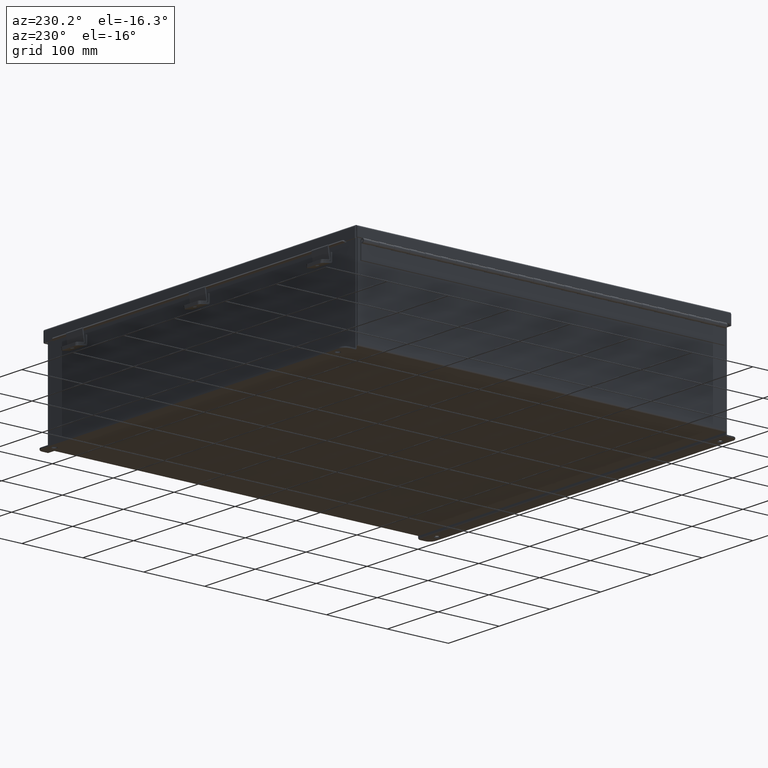
[diagram: clean part render]
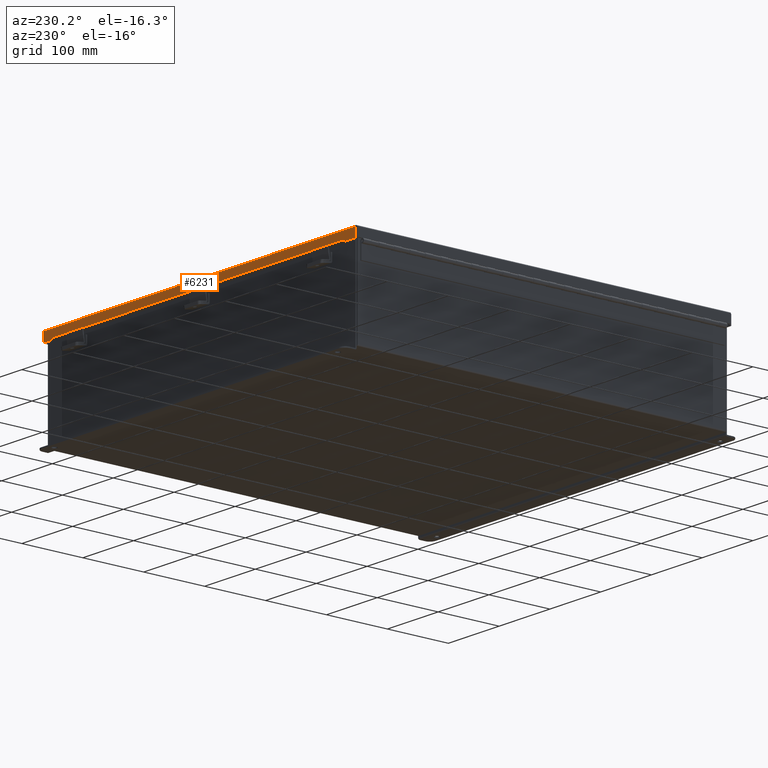
[diagram: same view with one face highlighted and labeled with its STEP entity id]
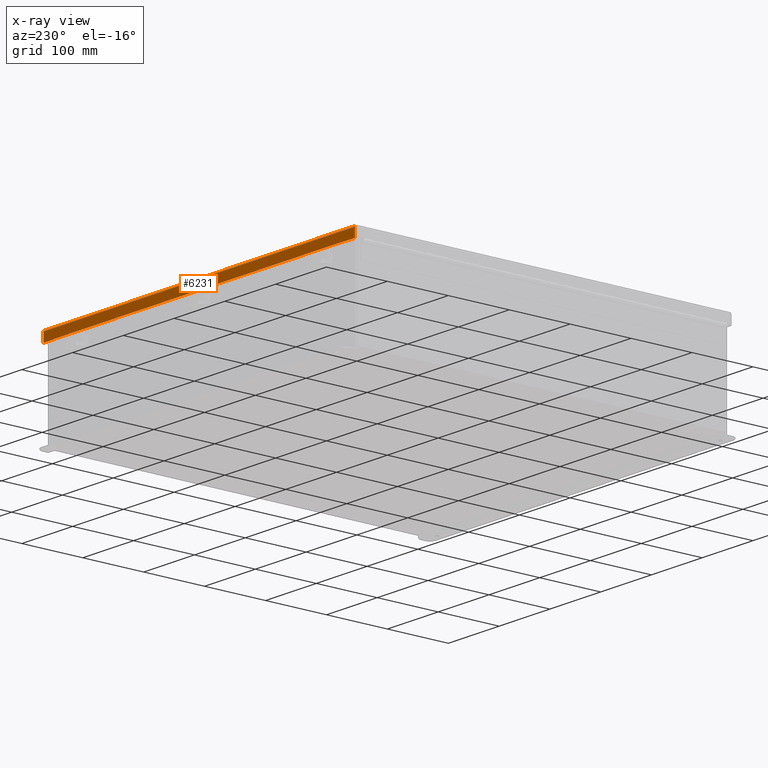
[diagram: x-ray of the same camera — body ghosted, the highlighted face saturated]
A machine part, auxiliary view. The second image highlights one B-rep face of the part: STEP entity #6231.
The next image is the same camera in x-ray: the body ghosted, the highlighted face saturated — about 0% of this face is hidden behind the body in this view.
In plain terms, the highlighted planar face has unit normal (-0, -1, -0).
Its self-contained STEP definition (entity closure, byte-faithful):
#749 = EDGE_CURVE ( 'NONE', #18148, #19298, #5746, .T. ) ;
#758 = PLANE ( 'NONE',  #11921 ) ;
#1365 = VERTEX_POINT ( 'NONE', #24680 ) ;
#1584 = CARTESIAN_POINT ( 'NONE',  ( 11.32447893218817300, 12.15625000000000200, 0.6123000000000005100 ) ) ;
#2405 = LINE ( 'NONE', #20569, #2613 ) ;
#2613 = VECTOR ( 'NONE', #16181, 39.37007874015748100 ) ;
#3145 = CARTESIAN_POINT ( 'NONE',  ( 11.32447893218816900, 12.15624999999999500, 0.5967115427318782100 ) ) ;
#3178 = DIRECTION ( 'NONE',  ( 0.0000000000000000000, 3.569293475308532400E-015, 1.000000000000000000 ) ) ;
#3265 = CARTESIAN_POINT ( 'NONE',  ( 0.0000000000000000000, 12.15624999999999800, -4.370956789862821100E-014 ) ) ;
#4363 = ORIENTED_EDGE ( 'NONE', *, *, #12279, .F. ) ;
#4789 = CARTESIAN_POINT ( 'NONE',  ( -12.07447893218816400, 12.15625000000000000, 0.6122999999999994000 ) ) ;
#4878 = ORIENTED_EDGE ( 'NONE', *, *, #749, .F. ) ;
#5016 = EDGE_CURVE ( 'NONE', #1365, #18262, #9262, .T. ) ;
#5138 = EDGE_CURVE ( 'NONE', #10554, #18148, #8335, .T. ) ;
#5178 = EDGE_CURVE ( 'NONE', #24583, #10554, #7836, .T. ) ;
#5375 = CARTESIAN_POINT ( 'NONE',  ( 11.32447893218817300, 12.15625000000000000, 0.6123000000000005100 ) ) ;
#5419 = VECTOR ( 'NONE', #12237, 39.37007874015748100 ) ;
#5599 = CARTESIAN_POINT ( 'NONE',  ( -12.07447893218816400, 12.15624999999999800, -4.370956789862821100E-014 ) ) ;
#5746 = LINE ( 'NONE', #12270, #5419 ) ;
#5814 = VERTEX_POINT ( 'NONE', #4789 ) ;
#5849 = EDGE_CURVE ( 'NONE', #5814, #19298, #2405, .T. ) ;
#6024 = EDGE_LOOP ( 'NONE', ( #18311, #24344, #4363, #13497, #14555, #11192, #4878, #22691 ) ) ;
#6231 = ADVANCED_FACE ( 'NONE', ( #22681 ), #758, .F. ) ;
#7812 = VECTOR ( 'NONE', #15337, 39.37007874015748100 ) ;
#7836 = LINE ( 'NONE', #1584, #7812 ) ;
#8142 = VECTOR ( 'NONE', #12881, 39.37007874015748100 ) ;
#8335 = LINE ( 'NONE', #3145, #8142 ) ;
#8422 = CARTESIAN_POINT ( 'NONE',  ( 12.07447893218817300, 12.15624999999999800, 0.01300000000000010700 ) ) ;
#8953 = CARTESIAN_POINT ( 'NONE',  ( 12.07447893218817300, 12.15624999999999800, 0.0000000000000000000 ) ) ;
#8982 = DIRECTION ( 'NONE',  ( -0.0000000000000000000, 3.569293475308532400E-015, 1.000000000000000000 ) ) ;
#9059 = VECTOR ( 'NONE', #22393, 39.37007874015748100 ) ;
#9120 = EDGE_CURVE ( 'NONE', #24583, #21087, #23861, .T. ) ;
#9262 = LINE ( 'NONE', #10788, #9059 ) ;
#10554 = VERTEX_POINT ( 'NONE', #12902 ) ;
#10788 = CARTESIAN_POINT ( 'NONE',  ( 12.15625000000003900, 12.15624999999999800, 0.01300000000000010700 ) ) ;
#11192 = ORIENTED_EDGE ( 'NONE', *, *, #5849, .T. ) ;
#11921 = AXIS2_PLACEMENT_3D ( 'NONE', #3265, #18257, #15664 ) ;
#12237 = DIRECTION ( 'NONE',  ( -9.813895308167668300E-013, 2.803970088047895600E-013, 1.000000000000000000 ) ) ;
#12270 = CARTESIAN_POINT ( 'NONE',  ( -11.32447893218815200, 12.15624999999999500, 0.5967115427318782100 ) ) ;
#12279 = EDGE_CURVE ( 'NONE', #18262, #21087, #20720, .T. ) ;
#12881 = DIRECTION ( 'NONE',  ( -1.000000000000000000, -3.191323508412551400E-030, -0.0000000000000000000 ) ) ;
#12902 = CARTESIAN_POINT ( 'NONE',  ( 11.32447893218817300, 12.15624999999999500, 0.5967115427318782100 ) ) ;
#13422 = CARTESIAN_POINT ( 'NONE',  ( 12.07447893218817300, 12.15625000000000000, 0.6123000000000005100 ) ) ;
#13497 = ORIENTED_EDGE ( 'NONE', *, *, #5016, .F. ) ;
#14555 = ORIENTED_EDGE ( 'NONE', *, *, #16966, .T. ) ;
#15337 = DIRECTION ( 'NONE',  ( 1.401985044024013700E-013, -4.205955132072028500E-013, -1.000000000000000000 ) ) ;
#15664 = DIRECTION ( 'NONE',  ( 0.0000000000000000000, -3.569293475308532400E-015, -1.000000000000000000 ) ) ;
#16181 = DIRECTION ( 'NONE',  ( 1.000000000000000000, 3.215610014906585900E-030, 2.809098193999883300E-018 ) ) ;
#16966 = EDGE_CURVE ( 'NONE', #1365, #5814, #19339, .T. ) ;
#17028 = CARTESIAN_POINT ( 'NONE',  ( -11.32447893218815200, 12.15625000000000000, 0.5967115427318782100 ) ) ;
#18148 = VERTEX_POINT ( 'NONE', #17028 ) ;
#18257 = DIRECTION ( 'NONE',  ( -3.347543324056399800E-030, -1.000000000000000000, 3.569293475308532400E-015 ) ) ;
#18262 = VERTEX_POINT ( 'NONE', #8422 ) ;
#18311 = ORIENTED_EDGE ( 'NONE', *, *, #5178, .F. ) ;
#18741 = VECTOR ( 'NONE', #3178, 39.37007874015748100 ) ;
#19298 = VERTEX_POINT ( 'NONE', #22566 ) ;
#19339 = LINE ( 'NONE', #5599, #18741 ) ;
#19616 = DIRECTION ( 'NONE',  ( 1.000000000000000000, 3.215610014906585900E-030, 2.809098193999883300E-018 ) ) ;
#19673 = CARTESIAN_POINT ( 'NONE',  ( 6.402768735150616900E-018, 12.15625000000000000, 0.6122999999999994000 ) ) ;
#20569 = CARTESIAN_POINT ( 'NONE',  ( 6.402768735150616900E-018, 12.15625000000000000, 0.6122999999999994000 ) ) ;
#20694 = VECTOR ( 'NONE', #8982, 39.37007874015748100 ) ;
#20720 = LINE ( 'NONE', #8953, #20694 ) ;
#21087 = VERTEX_POINT ( 'NONE', #13422 ) ;
#22360 = VECTOR ( 'NONE', #19616, 39.37007874015748100 ) ;
#22393 = DIRECTION ( 'NONE',  ( 1.000000000000000000, 3.079756689383634900E-030, -8.989114220797575600E-017 ) ) ;
#22566 = CARTESIAN_POINT ( 'NONE',  ( -11.32447893218816400, 12.15625000000000000, 0.6122999999999994000 ) ) ;
#22681 = FACE_OUTER_BOUND ( 'NONE', #6024, .T. ) ;
#22691 = ORIENTED_EDGE ( 'NONE', *, *, #5138, .F. ) ;
#23861 = LINE ( 'NONE', #19673, #22360 ) ;
#24344 = ORIENTED_EDGE ( 'NONE', *, *, #9120, .T. ) ;
#24583 = VERTEX_POINT ( 'NONE', #5375 ) ;
#24680 = CARTESIAN_POINT ( 'NONE',  ( -12.07447893218816400, 12.15624999999999800, 0.01300000000000229300 ) ) ;